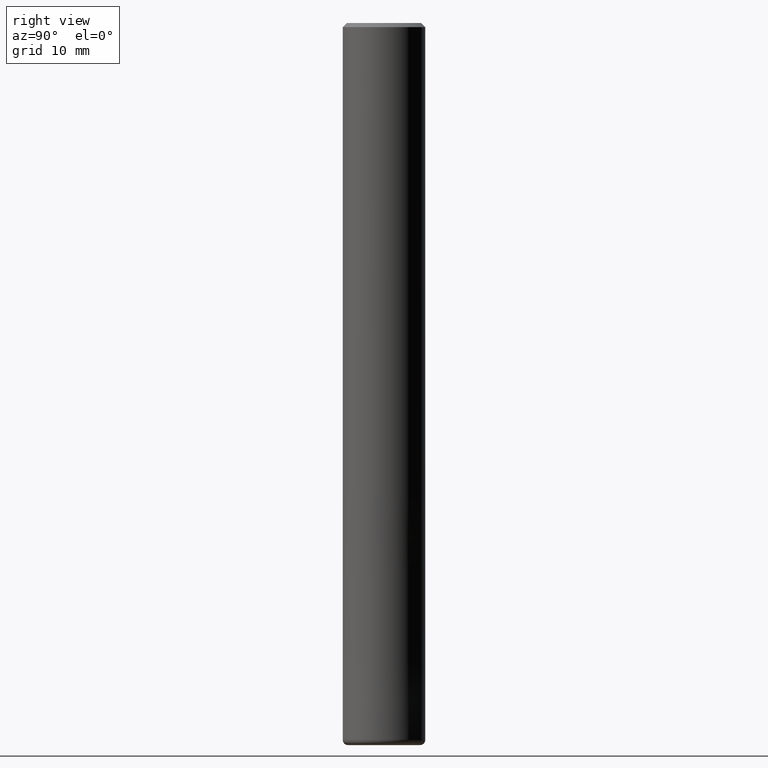
[diagram: clean part render]
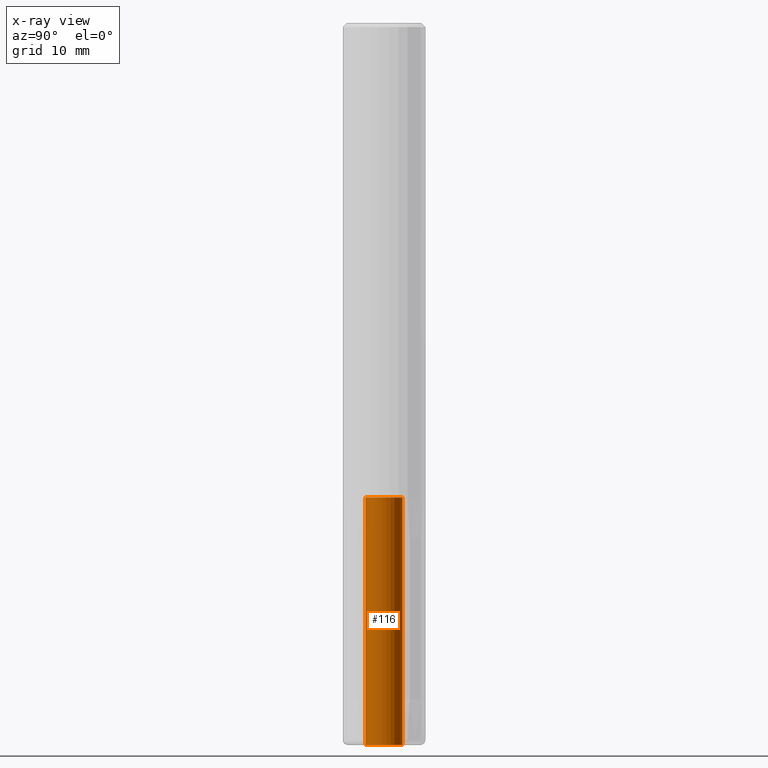
[diagram: x-ray — body ghosted, one internal face saturated and labeled with its STEP entity id]
A machine part, right view, then the same camera in x-ray: the body is ghosted and one INTERNAL B-rep face — a face not visible from any outside direction — is saturated and labeled: STEP entity #116.
In plain terms, the highlighted cylindrical surface (edge-blend (fillet) strip) has radius 1.8 mm, axis along (-0, -0, 1).
Its self-contained STEP definition (entity closure, byte-faithful):
#114=VERTEX_POINT('',#276);
#116=ADVANCED_FACE('',(#278),#279,.F.);
#130=EDGE_CURVE('',#144,#114,#296,.T.);
#144=VERTEX_POINT('',#311);
#158=EDGE_CURVE('',#144,#236,#327,.T.);
#162=VERTEX_POINT('',#332);
#190=EDGE_CURVE('',#114,#162,#363,.T.);
#226=EDGE_CURVE('',#162,#236,#402,.T.);
#236=VERTEX_POINT('',#416);
#276=CARTESIAN_POINT('',(0.0,1.8,-70.0));
#278=FACE_OUTER_BOUND('',#452,.T.);
#279=CYLINDRICAL_SURFACE('',#453,1.8);
#296=LINE('',#475,#476);
#311=CARTESIAN_POINT('',(0.0,1.8,-46.0));
#327=CIRCLE('',#515,1.8);
#332=CARTESIAN_POINT('',(2.20429143688028E-016,-1.8,-70.0));
#363=CIRCLE('',#559,1.8);
#402=LINE('',#608,#609);
#416=CARTESIAN_POINT('',(2.20429143688028E-016,-1.8,-46.0));
#452=EDGE_LOOP('',(#652,#653,#654,#655));
#453=AXIS2_PLACEMENT_3D('',#656,#657,#658);
#475=CARTESIAN_POINT('',(-2.20429143688028E-016,1.8,-58.0));
#476=VECTOR('',#682,1.0);
#515=AXIS2_PLACEMENT_3D('',#725,#726,#727);
#559=AXIS2_PLACEMENT_3D('',#763,#764,#765);
#608=CARTESIAN_POINT('',(2.20429143688028E-016,-1.8,-58.0));
#609=VECTOR('',#811,1.0);
#652=ORIENTED_EDGE('',*,*,#130,.T.);
#653=ORIENTED_EDGE('',*,*,#190,.T.);
#654=ORIENTED_EDGE('',*,*,#226,.T.);
#655=ORIENTED_EDGE('',*,*,#158,.F.);
#656=CARTESIAN_POINT('',(0.0,0.0,-58.0));
#657=DIRECTION('',(-0.0,-0.0,1.0));
#658=DIRECTION('',(0.0,1.0,0.0));
#682=DIRECTION('',(0.0,-0.0,-1.0));
#725=CARTESIAN_POINT('',(0.0,0.0,-46.0));
#726=DIRECTION('',(0.0,0.0,-1.0));
#727=DIRECTION('',(0.0,1.0,0.0));
#763=CARTESIAN_POINT('',(0.0,0.0,-70.0));
#764=DIRECTION('',(0.0,0.0,-1.0));
#765=DIRECTION('',(0.0,1.0,0.0));
#811=DIRECTION('',(0.0,-0.0,1.0));